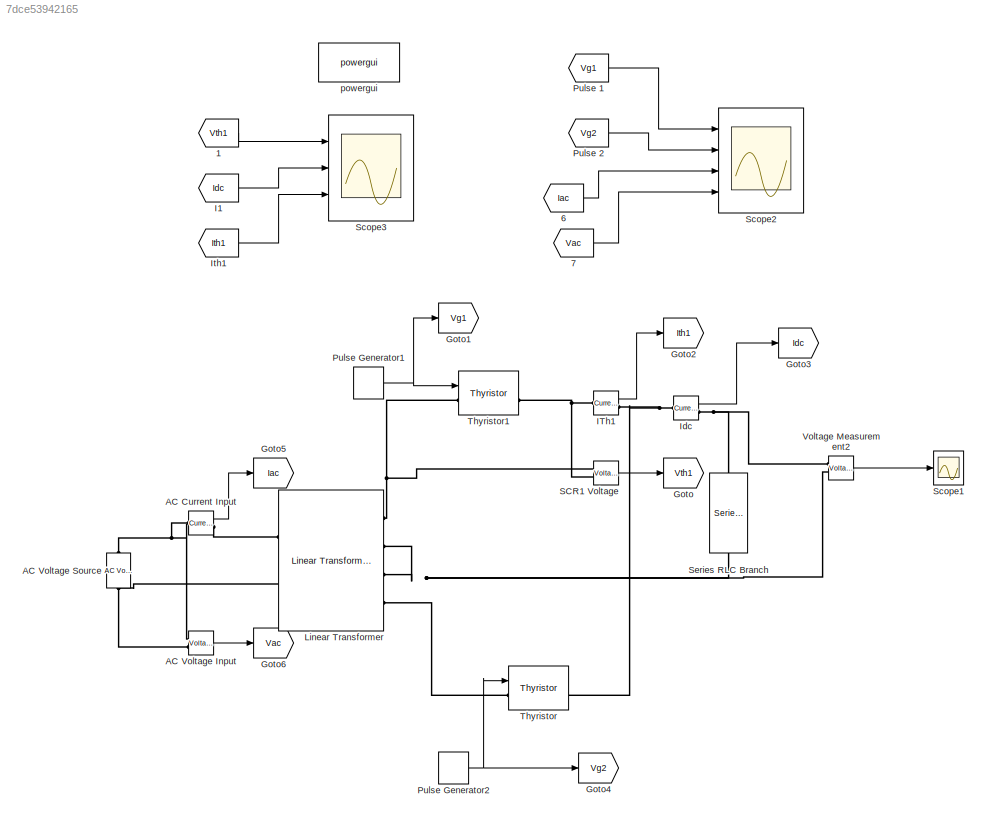
MODEL slx_7dce53942165
KIND model
CONFIG AbsTol = auto
CONFIG EnableMultiTasking = off
CONFIG FixedStep = auto
CONFIG MaxStep = auto
CONFIG MinStep = auto
CONFIG RelTol = 1e-3
CONFIG SampleTimeConstraint = Unconstrained
CONFIG Solver = ode23
CONFIG SolverName = ode23
CONFIG StartTime = 0.0
CONFIG StopTime = 0.08
BLOCK [From] 1
  GotoTag = Vth1
BLOCK [From] 6
  GotoTag = Iac
BLOCK [From] 7
  GotoTag = Vac
BLOCK [Reference] AC Current Input  REF=powerlib/Measurements/Current Measurement
  Ports = [0, 1, 0, 0, 0, 1, 1]
  SourceBlock = powerlib/Measurements/Current Measurement
  SourceProductBaseCode = PS
  SourceProductName = Simscape Electrical
  SourceType = Current Measurement
  UserDataPersistent = on
BLOCK [Reference] AC Voltage Input  REF=powerlib/Measurements/Voltage Measurement
  Ports = [0, 1, 0, 0, 0, 2]
  SourceBlock = powerlib/Measurements/Voltage Measurement
  SourceProductBaseCode = PS
  SourceProductName = Simscape Electrical
  SourceType = Voltage Measurement
  UserDataPersistent = on
BLOCK [Reference] AC Voltage Source  REF=powerlib/Electrical
Sources/AC Voltage Source
  Ports = [0, 0, 0, 0, 0, 1, 1]
  SourceBlock = powerlib/Electrical\nSources/AC Voltage Source
  SourceProductBaseCode = PS
  SourceProductName = Simscape Electrical
  SourceType = AC Voltage Source
BLOCK [Goto] Goto
  GotoTag = Vth1
BLOCK [Goto] Goto1
  GotoTag = Vg1
BLOCK [Goto] Goto2
  GotoTag = Ith1
BLOCK [Goto] Goto3
  GotoTag = Idc
BLOCK [Goto] Goto4
  GotoTag = Vg2
BLOCK [Goto] Goto5
  GotoTag = Iac
BLOCK [Goto] Goto6
  GotoTag = Vac
BLOCK [From] I1
  GotoTag = Idc
BLOCK [Reference] ITh1  REF=powerlib/Measurements/Current Measurement
  Ports = [0, 1, 0, 0, 0, 1, 1]
  SourceBlock = powerlib/Measurements/Current Measurement
  SourceProductBaseCode = PS
  SourceProductName = Simscape Electrical
  SourceType = Current Measurement
  UserDataPersistent = on
BLOCK [Reference] Idc  REF=powerlib/Measurements/Current Measurement
  Ports = [0, 1, 0, 0, 0, 1, 1]
  SourceBlock = powerlib/Measurements/Current Measurement
  SourceProductBaseCode = PS
  SourceProductName = Simscape Electrical
  SourceType = Current Measurement
  UserDataPersistent = on
BLOCK [From] Ith1
  GotoTag = Ith1
BLOCK [Reference] Linear Transformer  REF=powerlib/Elements/Linear Transformer
  Ports = [0, 0, 0, 0, 0, 2, 4]
  SourceBlock = powerlib/Elements/Linear Transformer
  SourceProductBaseCode = PS
  SourceProductName = Simscape Electrical
  SourceType = Linear Transformer
BLOCK [From] Pulse 1
  GotoTag = Vg1
BLOCK [From] Pulse 2
  GotoTag = Vg2
BLOCK [DiscretePulseGenerator] Pulse Generator1
  Amplitude = 50
  Period = 0.02
  PhaseDelay = 1.667e-3
  Ports = [0, 1]
  PulseType = Time based
  PulseWidth = 20
BLOCK [DiscretePulseGenerator] Pulse Generator2
  Amplitude = 50
  Period = 0.02
  PhaseDelay = 0.011667
  Ports = [0, 1]
  PulseType = Time based
  PulseWidth = 20
BLOCK [Reference] SCR1 Voltage  REF=powerlib/Measurements/Voltage Measurement
  Ports = [0, 1, 0, 0, 0, 2]
  SourceBlock = powerlib/Measurements/Voltage Measurement
  SourceProductBaseCode = PS
  SourceProductName = Simscape Electrical
  SourceType = Voltage Measurement
  UserDataPersistent = on
BLOCK [Scope] Scope1
  Floating = off
  NumInputPorts = 1
  Ports = [1]
  ScopeSpecificationString = Simulink.scopes.TimeScopeBlockCfg('CurrentConfiguration', extmgr.ConfigurationSet(extmgr.Configuration('Core','General UI',true,'FigureColor',[1 1 1]),extmgr.Configuration('Core','Source UI',true),extmgr.Configuration('Sources','WiredSimulink',true,'DataLoggingVariableName','ScopeData1'),extmgr.Configuration('Visuals','Time Domain',true,'SerializedDisplays',{struct('MinYLimReal','-30.36238','MaxYL...<+1606ch>
BLOCK [Scope] Scope2
  Floating = off
  NumInputPorts = 4
  Ports = [4]
  ScopeSpecificationString = Simulink.scopes.TimeScopeBlockCfg('CurrentConfiguration', extmgr.ConfigurationSet(extmgr.Configuration('Core','General UI',true,'FigureColor',[1 1 1]),extmgr.Configuration('Core','Source UI',true),extmgr.Configuration('Sources','WiredSimulink',true,'DataLoggingVariableName','Signals1','DataLogging',true,'DataLoggingSaveFormat','StructureWithTime'),extmgr.Configuration('Visuals','Time Domain',true,...<+4063ch>
BLOCK [Scope] Scope3
  Floating = off
  NumInputPorts = 3
  Ports = [3]
  ScopeSpecificationString = Simulink.scopes.TimeScopeBlockCfg('CurrentConfiguration', extmgr.ConfigurationSet(extmgr.Configuration('Core','General UI',true,'FigureColor',[1 1 1]),extmgr.Configuration('Core','Source UI',true),extmgr.Configuration('Sources','WiredSimulink',true,'DataLoggingVariableName','ScopeData2','DataLogging',true,'DataLoggingSaveFormat','StructureWithTime'),extmgr.Configuration('Visuals','Time Domain',tru...<+3223ch>
BLOCK [Reference] Series RLC Branch  REF=powerlib/Elements/Series RLC Branch
  Ports = [0, 0, 0, 0, 0, 1, 1]
  SourceBlock = powerlib/Elements/Series RLC Branch
  SourceProductBaseCode = PS
  SourceProductName = Simscape Electrical
  SourceType = Series RLC Branch
BLOCK [Reference] Thyristor  REF=powerlib/Power
Electronics/Thyristor
  Ports = [1, 1, 0, 0, 0, 1, 1]
  SourceBlock = powerlib/Power\nElectronics/Thyristor
  SourceProductBaseCode = PS
  SourceProductName = Simscape Electrical
  SourceType = Thyristor
BLOCK [Reference] Thyristor1  REF=powerlib/Power
Electronics/Thyristor
  Ports = [1, 1, 0, 0, 0, 1, 1]
  SourceBlock = powerlib/Power\nElectronics/Thyristor
  SourceProductBaseCode = PS
  SourceProductName = Simscape Electrical
  SourceType = Thyristor
BLOCK [Reference] Voltage Measurement2  REF=powerlib/Measurements/Voltage Measurement
  Ports = [0, 1, 0, 0, 0, 2]
  SourceBlock = powerlib/Measurements/Voltage Measurement
  SourceProductBaseCode = PS
  SourceProductName = Simscape Electrical
  SourceType = Voltage Measurement
  UserDataPersistent = on
BLOCK [Reference] powergui  REF=powerlib/powergui
  Ports = []
  Priority = 1
  SourceBlock = powerlib/powergui
  SourceProductBaseCode = PS
  SourceProductName = Simscape Electrical
  SourceType = PSB option menu block
LINE 1:1 -> Scope3:1
LINE 6:1 -> Scope2:3
LINE 7:1 -> Scope2:4
LINE AC Current Input:1 -> Goto5:1
LINE AC Voltage Input:1 -> Goto6:1
LINE I1:1 -> Scope3:2
LINE ITh1:1 -> Goto2:1
LINE Idc:1 -> Goto3:1
LINE Ith1:1 -> Scope3:3
LINE Pulse 1:1 -> Scope2:1
LINE Pulse 2:1 -> Scope2:2
NET Pulse Generator1:1 -> Goto1:1, Thyristor1:1
NET Pulse Generator2:1 -> Goto4:1, Thyristor:1
LINE SCR1 Voltage:1 -> Goto:1
LINE Voltage Measurement2:1 -> Scope1:1
PNET net1: AC Current Input:LConn1 -- AC Voltage Input:LConn1 -- AC Voltage Source:RConn1
PLINE AC Current Input:RConn1 -- Linear Transformer:LConn1
PNET net2: AC Voltage Input:LConn2 -- AC Voltage Source:LConn1 -- Linear Transformer:LConn2
PNET net3: ITh1:LConn1 -- SCR1 Voltage:LConn2 -- Thyristor1:RConn1
PNET net4: ITh1:RConn1 -- Idc:LConn1 -- Thyristor:RConn1
PNET net5: Idc:RConn1 -- Series RLC Branch:LConn1 -- Voltage Measurement2:LConn1
PNET net6: Linear Transformer:RConn1 -- SCR1 Voltage:LConn1 -- Thyristor1:LConn1
PNET net7: Linear Transformer:RConn2 -- Linear Transformer:RConn3 -- Series RLC Branch:RConn1 -- Voltage Measurement2:LConn2
PLINE Linear Transformer:RConn4 -- Thyristor:LConn1
note: NET lines group one-source signal fan-out (src -> all destinations, sorted); 1:1 wires keep LINE; PNET lines group multi-terminal physical nets as a canonical sorted terminal list (undirected conserving connections); 2-terminal nets keep the pairwise PLINE form
